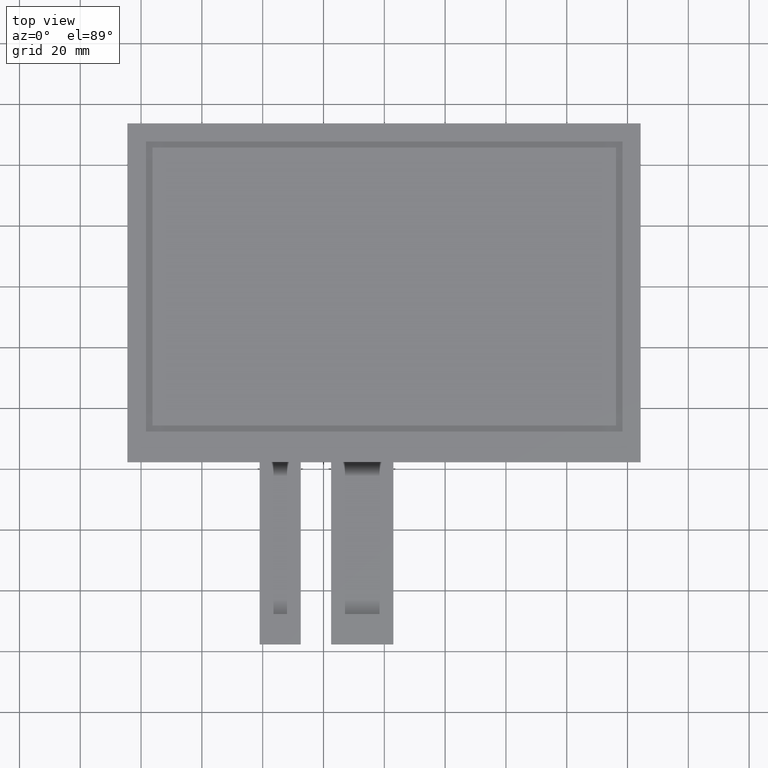
[diagram: clean part render]
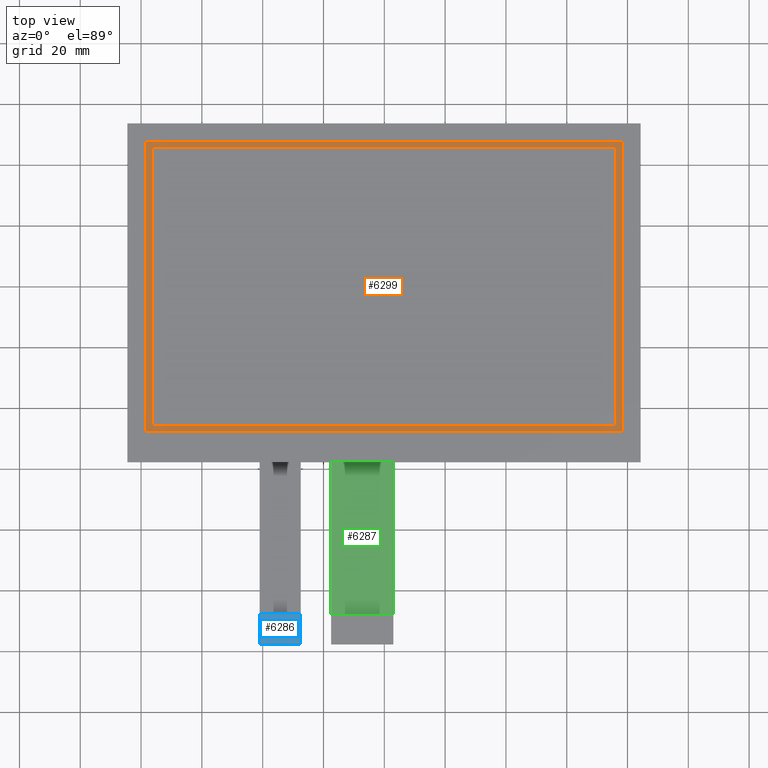
[diagram: same view with three faces highlighted in distinct colors, each labeled with its STEP entity id]
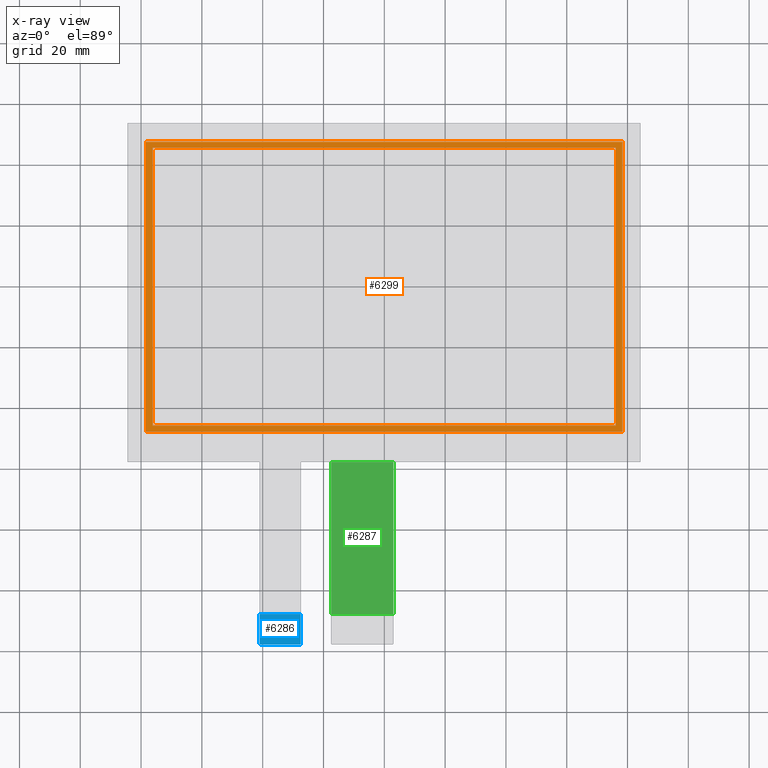
[diagram: x-ray of the same camera — body ghosted, the three highlighted faces saturated]
A machine part, top view with three faces highlighted in distinct colors.
The next image is the same camera in x-ray (body ghosted, the three faces saturated) — at least one of them is partly hidden behind the body in this view.
Their STEP definitions:

[orange] entity #6299 — the highlighted planar face has unit normal (0, 0, -1).
#67=FACE_BOUND('',#966,.T.);
#361=PLANE('',#6629);
#663=FACE_OUTER_BOUND('',#965,.T.);
#965=EDGE_LOOP('',(#5953,#5954,#5955,#5956));
#966=EDGE_LOOP('',(#5957,#5958,#5959,#5960));
#1823=LINE('',#9853,#2703);
#1827=LINE('',#9860,#2707);
#1830=LINE('',#9866,#2710);
#1832=LINE('',#9869,#2712);
#1835=LINE('',#9877,#2715);
#1839=LINE('',#9884,#2719);
#1842=LINE('',#9890,#2722);
#1844=LINE('',#9893,#2724);
#2703=VECTOR('',#8075,10.);
#2707=VECTOR('',#8081,10.);
#2710=VECTOR('',#8086,10.);
#2712=VECTOR('',#8090,10.);
#2715=VECTOR('',#8095,10.);
#2719=VECTOR('',#8101,10.);
#2722=VECTOR('',#8106,10.);
#2724=VECTOR('',#8110,10.);
#3315=VERTEX_POINT('',#9850);
#3316=VERTEX_POINT('',#9852);
#3318=VERTEX_POINT('',#9858);
#3320=VERTEX_POINT('',#9864);
#3323=VERTEX_POINT('',#9874);
#3324=VERTEX_POINT('',#9876);
#3326=VERTEX_POINT('',#9882);
#3328=VERTEX_POINT('',#9888);
#4191=EDGE_CURVE('',#3315,#3316,#1823,.T.);
#4195=EDGE_CURVE('',#3318,#3315,#1827,.T.);
#4198=EDGE_CURVE('',#3320,#3318,#1830,.T.);
#4200=EDGE_CURVE('',#3316,#3320,#1832,.T.);
#4203=EDGE_CURVE('',#3323,#3324,#1835,.T.);
#4207=EDGE_CURVE('',#3326,#3323,#1839,.T.);
#4210=EDGE_CURVE('',#3328,#3326,#1842,.T.);
#4212=EDGE_CURVE('',#3324,#3328,#1844,.T.);
#5953=ORIENTED_EDGE('',*,*,#4212,.F.);
#5954=ORIENTED_EDGE('',*,*,#4203,.F.);
#5955=ORIENTED_EDGE('',*,*,#4207,.F.);
#5956=ORIENTED_EDGE('',*,*,#4210,.F.);
#5957=ORIENTED_EDGE('',*,*,#4200,.F.);
#5958=ORIENTED_EDGE('',*,*,#4191,.F.);
#5959=ORIENTED_EDGE('',*,*,#4195,.F.);
#5960=ORIENTED_EDGE('',*,*,#4198,.F.);
#6299=ADVANCED_FACE('',(#663,#67),#361,.F.);
#6629=AXIS2_PLACEMENT_3D('',#9894,#8111,#8112);
#8075=DIRECTION('',(1.,1.16558847729675E-16,0.));
#8081=DIRECTION('',(0.,-1.,0.));
#8086=DIRECTION('',(-1.,1.16558847729675E-16,0.));
#8090=DIRECTION('',(0.,1.,0.));
#8095=DIRECTION('',(-1.86298567320425E-16,1.,0.));
#8101=DIRECTION('',(-1.,-1.13360359885147E-16,0.));
#8106=DIRECTION('',(0.,-1.,0.));
#8110=DIRECTION('',(1.,0.,0.));
#8111=DIRECTION('center_axis',(0.,0.,-1.));
#8112=DIRECTION('ref_axis',(-1.,0.,0.));
#9850=CARTESIAN_POINT('',(-76.2,-45.72,-0.1));
#9852=CARTESIAN_POINT('',(76.2,-45.72,-0.1));
#9853=CARTESIAN_POINT('',(76.2,-45.72,-0.1));
#9858=CARTESIAN_POINT('',(-76.2,45.72,-0.1));
#9860=CARTESIAN_POINT('',(-76.2,-45.72,-0.1));
#9864=CARTESIAN_POINT('',(76.2,45.72,-0.1));
#9866=CARTESIAN_POINT('',(-76.2,45.72,-0.1));
#9869=CARTESIAN_POINT('',(76.2,45.72,-0.1));
#9874=CARTESIAN_POINT('',(-78.4,-47.72,-0.1));
#9876=CARTESIAN_POINT('',(-78.4,47.63,-0.1));
#9877=CARTESIAN_POINT('',(-78.4,47.63,-0.1));
#9882=CARTESIAN_POINT('',(78.3,-47.72,-0.1));
#9884=CARTESIAN_POINT('',(-78.4,-47.72,-0.1));
#9888=CARTESIAN_POINT('',(78.3,47.63,-0.1));
#9890=CARTESIAN_POINT('',(78.3,-47.72,-0.1));
#9893=CARTESIAN_POINT('',(78.3,47.63,-0.1));
#9894=CARTESIAN_POINT('Origin',(-0.0500000000000256,-0.0450000000000106,
-0.1));

[blue] entity #6286 — the highlighted planar face has unit normal (0, 0, 1).
#348=PLANE('',#6616);
#650=FACE_OUTER_BOUND('',#952,.T.);
#952=EDGE_LOOP('',(#5899,#5900,#5901,#5902,#5903,#5904));
#1085=LINE('',#8362,#1965);
#1096=LINE('',#8388,#1976);
#1801=LINE('',#9808,#2681);
#1816=LINE('',#9836,#2696);
#1965=VECTOR('',#6755,10.);
#1976=VECTOR('',#6776,10.);
#2681=VECTOR('',#8031,10.);
#2696=VECTOR('',#8056,10.);
#2737=CIRCLE('',#6328,0.2);
#2740=CIRCLE('',#6334,0.2);
#2745=VERTEX_POINT('',#8141);
#2746=VERTEX_POINT('',#8142);
#2854=VERTEX_POINT('',#8360);
#2858=VERTEX_POINT('',#8372);
#2864=VERTEX_POINT('',#8386);
#3304=VERTEX_POINT('',#9807);
#3337=EDGE_CURVE('',#2745,#2746,#2737,.T.);
#3447=EDGE_CURVE('',#2745,#2854,#1085,.T.);
#3453=EDGE_CURVE('',#2858,#2854,#2740,.T.);
#3460=EDGE_CURVE('',#2858,#2864,#1096,.T.);
#4169=EDGE_CURVE('',#3304,#2746,#1801,.T.);
#4184=EDGE_CURVE('',#2864,#3304,#1816,.T.);
#5899=ORIENTED_EDGE('',*,*,#3337,.F.);
#5900=ORIENTED_EDGE('',*,*,#3447,.T.);
#5901=ORIENTED_EDGE('',*,*,#3453,.F.);
#5902=ORIENTED_EDGE('',*,*,#3460,.T.);
#5903=ORIENTED_EDGE('',*,*,#4184,.T.);
#5904=ORIENTED_EDGE('',*,*,#4169,.T.);
#6286=ADVANCED_FACE('',(#650),#348,.T.);
#6328=AXIS2_PLACEMENT_3D('',#8143,#6641,#6642);
#6334=AXIS2_PLACEMENT_3D('',#8374,#6766,#6767);
#6616=AXIS2_PLACEMENT_3D('',#9837,#8057,#8058);
#6641=DIRECTION('center_axis',(0.,0.,-1.));
#6642=DIRECTION('ref_axis',(-0.707106781186548,-0.707106781186548,0.));
#6755=DIRECTION('',(1.,0.,0.));
#6766=DIRECTION('center_axis',(0.,0.,-1.));
#6767=DIRECTION('ref_axis',(0.707106781186563,-0.707106781186532,0.));
#6776=DIRECTION('',(4.44089209850062E-16,1.,0.));
#8031=DIRECTION('',(0.,-1.,0.));
#8056=DIRECTION('',(-1.,0.,0.));
#8057=DIRECTION('center_axis',(0.,0.,1.));
#8058=DIRECTION('ref_axis',(1.,0.,0.));
#8141=CARTESIAN_POINT('',(-40.8,-117.72,-0.8));
#8142=CARTESIAN_POINT('',(-41.,-117.52,-0.8));
#8143=CARTESIAN_POINT('Origin',(-40.8,-117.52,-0.8));
#8360=CARTESIAN_POINT('',(-27.6999999999999,-117.72,-0.8));
#8362=CARTESIAN_POINT('',(-41.,-117.72,-0.8));
#8372=CARTESIAN_POINT('',(-27.4999999999999,-117.52,-0.8));
#8374=CARTESIAN_POINT('Origin',(-27.6999999999999,-117.52,-0.8));
#8386=CARTESIAN_POINT('',(-27.4999999999999,-107.72,-0.8));
#8388=CARTESIAN_POINT('',(-27.4999999999999,-117.72,-0.8));
#9807=CARTESIAN_POINT('',(-41.,-107.72,-0.8));
#9808=CARTESIAN_POINT('',(-41.,-107.72,-0.8));
#9836=CARTESIAN_POINT('',(-27.4999999999999,-107.72,-0.8));
#9837=CARTESIAN_POINT('Origin',(-34.2499999999999,-112.72,-0.8));

[green] entity #6287 — the highlighted planar face has unit normal (0, 0, 1).
#349=PLANE('',#6617);
#651=FACE_OUTER_BOUND('',#953,.T.);
#953=EDGE_LOOP('',(#5905,#5906,#5907,#5908));
#1272=LINE('',#8750,#2152);
#1810=LINE('',#9826,#2690);
#1813=LINE('',#9831,#2693);
#1817=LINE('',#9839,#2697);
#2152=VECTOR('',#6972,10.);
#2690=VECTOR('',#8044,10.);
#2693=VECTOR('',#8049,10.);
#2697=VECTOR('',#8061,10.);
#3039=VERTEX_POINT('',#8747);
#3040=VERTEX_POINT('',#8749);
#3310=VERTEX_POINT('',#9823);
#3311=VERTEX_POINT('',#9825);
#3640=EDGE_CURVE('',#3040,#3039,#1272,.T.);
#4178=EDGE_CURVE('',#3311,#3310,#1810,.T.);
#4181=EDGE_CURVE('',#3310,#3040,#1813,.T.);
#4185=EDGE_CURVE('',#3311,#3039,#1817,.T.);
#5905=ORIENTED_EDGE('',*,*,#4181,.T.);
#5906=ORIENTED_EDGE('',*,*,#3640,.T.);
#5907=ORIENTED_EDGE('',*,*,#4185,.F.);
#5908=ORIENTED_EDGE('',*,*,#4178,.T.);
#6287=ADVANCED_FACE('',(#651),#349,.T.);
#6617=AXIS2_PLACEMENT_3D('',#9838,#8059,#8060);
#6972=DIRECTION('',(-5.9211894646675E-16,1.,0.));
#8044=DIRECTION('',(5.55111512312579E-16,-1.,0.));
#8049=DIRECTION('',(1.,0.,0.));
#8059=DIRECTION('center_axis',(0.,0.,1.));
#8060=DIRECTION('ref_axis',(1.,0.,0.));
#8061=DIRECTION('',(1.,1.05234409917076E-16,0.));
#8747=CARTESIAN_POINT('',(3.00000000000009,-57.72,-1.1));
#8749=CARTESIAN_POINT('',(3.00000000000013,-107.72,-1.1));
#8750=CARTESIAN_POINT('',(3.00000000000013,-117.72,-1.1));
#9823=CARTESIAN_POINT('',(-17.5,-107.72,-1.1));
#9825=CARTESIAN_POINT('',(-17.5,-57.72,-1.1));
#9826=CARTESIAN_POINT('',(-17.5,-57.72,-1.1));
#9831=CARTESIAN_POINT('',(-2.1249999999999,-107.72,-1.1));
#9838=CARTESIAN_POINT('Origin',(-7.24999999999993,-87.72,-1.1));
#9839=CARTESIAN_POINT('',(38.525,-57.72,-1.1));